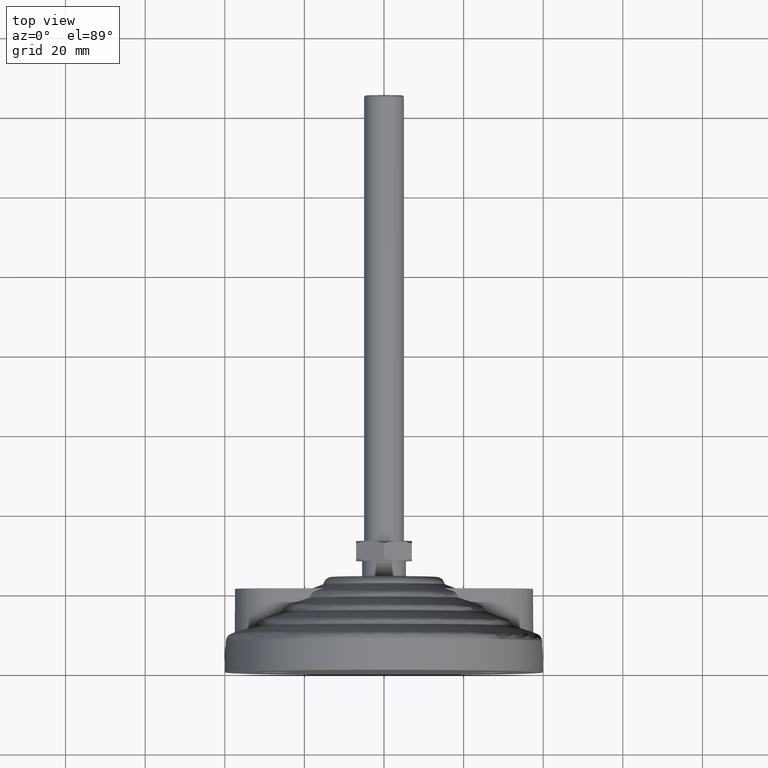
[diagram: clean part render]
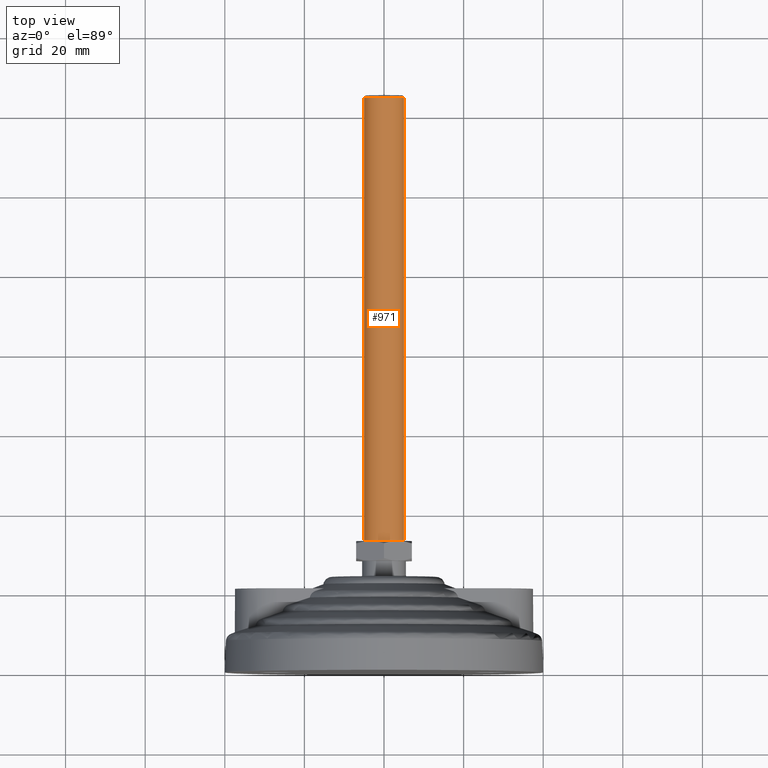
[diagram: same view with one face highlighted and labeled with its STEP entity id]
A machine part, top view. The second image highlights one B-rep face of the part: STEP entity #971.
In plain terms, the highlighted cylindrical surface (bore or boss wall) has radius 5 mm, axis along (0, -1, 0).
Its self-contained STEP definition (entity closure, byte-faithful):
#170=FACE_OUTER_BOUND('',#230,.T.);
#230=EDGE_LOOP('',(#827,#828,#829,#830,#831,#832,#833));
#271=LINE('',#1884,#294);
#294=VECTOR('',#1387,5.);
#350=CIRCLE('',#1137,5.);
#351=CIRCLE('',#1138,5.);
#355=CIRCLE('',#1142,5.);
#356=CIRCLE('',#1145,4.99999999999999);
#357=CIRCLE('',#1146,4.99999999999999);
#442=VERTEX_POINT('',#1867);
#443=VERTEX_POINT('',#1868);
#444=VERTEX_POINT('',#1870);
#447=VERTEX_POINT('',#1880);
#448=VERTEX_POINT('',#1881);
#573=EDGE_CURVE('',#442,#443,#350,.T.);
#574=EDGE_CURVE('',#443,#444,#351,.T.);
#578=EDGE_CURVE('',#444,#442,#355,.T.);
#579=EDGE_CURVE('',#447,#448,#356,.T.);
#580=EDGE_CURVE('',#448,#447,#357,.T.);
#581=EDGE_CURVE('',#448,#443,#271,.T.);
#827=ORIENTED_EDGE('',*,*,#579,.F.);
#828=ORIENTED_EDGE('',*,*,#580,.F.);
#829=ORIENTED_EDGE('',*,*,#581,.T.);
#830=ORIENTED_EDGE('',*,*,#573,.F.);
#831=ORIENTED_EDGE('',*,*,#578,.F.);
#832=ORIENTED_EDGE('',*,*,#574,.F.);
#833=ORIENTED_EDGE('',*,*,#581,.F.);
#937=CYLINDRICAL_SURFACE('',#1144,5.);
#971=ADVANCED_FACE('',(#170),#937,.T.);
#1137=AXIS2_PLACEMENT_3D('',#1869,#1367,#1368);
#1138=AXIS2_PLACEMENT_3D('',#1871,#1369,#1370);
#1142=AXIS2_PLACEMENT_3D('',#1877,#1377,#1378);
#1144=AXIS2_PLACEMENT_3D('',#1879,#1381,#1382);
#1145=AXIS2_PLACEMENT_3D('',#1882,#1383,#1384);
#1146=AXIS2_PLACEMENT_3D('',#1883,#1385,#1386);
#1367=DIRECTION('center_axis',(-7.50650195314543E-17,1.,0.));
#1368=DIRECTION('ref_axis',(-1.,-6.93889390390723E-17,1.22464679914735E-16));
#1369=DIRECTION('center_axis',(-7.50650195314543E-17,1.,0.));
#1370=DIRECTION('ref_axis',(-1.,-6.93889390390723E-17,1.22464679914735E-16));
#1377=DIRECTION('center_axis',(-7.50650195314543E-17,1.,0.));
#1378=DIRECTION('ref_axis',(-1.,-6.93889390390723E-17,1.22464679914735E-16));
#1381=DIRECTION('center_axis',(7.50650195314543E-17,-1.,0.));
#1382=DIRECTION('ref_axis',(1.,0.,0.));
#1383=DIRECTION('center_axis',(7.50650195314543E-17,-1.,0.));
#1384=DIRECTION('ref_axis',(1.,0.,0.));
#1385=DIRECTION('center_axis',(7.50650195314543E-17,-1.,0.));
#1386=DIRECTION('ref_axis',(1.,0.,0.));
#1387=DIRECTION('',(-7.50650195314543E-17,1.,0.));
#1867=CARTESIAN_POINT('',(5.,144.5,-1.22464679914735E-15));
#1868=CARTESIAN_POINT('',(-4.99999999999999,144.5,-6.12323399573676E-16));
#1869=CARTESIAN_POINT('Origin',(4.36074826846081E-15,144.5,0.));
#1870=CARTESIAN_POINT('',(3.74842486888713E-15,144.5,5.));
#1871=CARTESIAN_POINT('Origin',(4.36074826846081E-15,144.5,0.));
#1877=CARTESIAN_POINT('Origin',(4.36074826846081E-15,144.5,0.));
#1879=CARTESIAN_POINT('Origin',(7.36034644893772E-15,104.54,0.));
#1880=CARTESIAN_POINT('',(5.,33.,0.));
#1881=CARTESIAN_POINT('',(-4.99999999999998,33.,-6.12323399573676E-16));
#1882=CARTESIAN_POINT('Origin',(1.2730497946218E-14,33.,0.));
#1883=CARTESIAN_POINT('Origin',(1.2730497946218E-14,33.,0.));
#1884=CARTESIAN_POINT('',(-4.99999999999999,104.54,-6.12323399573676E-16));